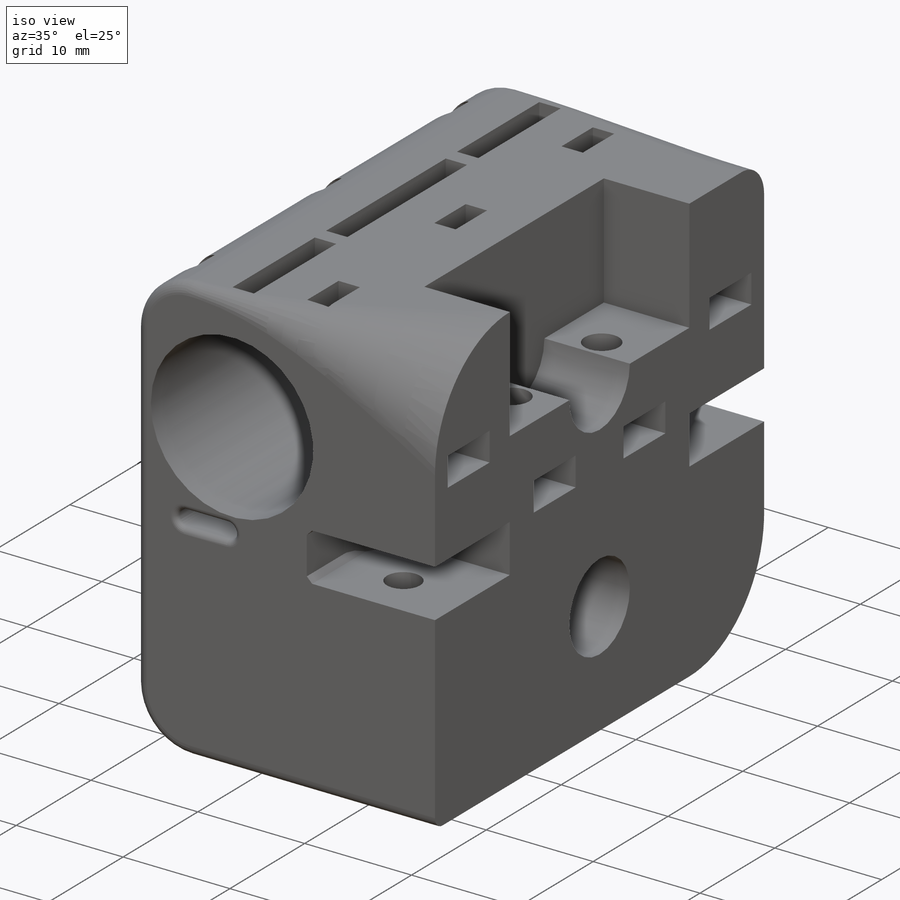
[diagram: iso view]
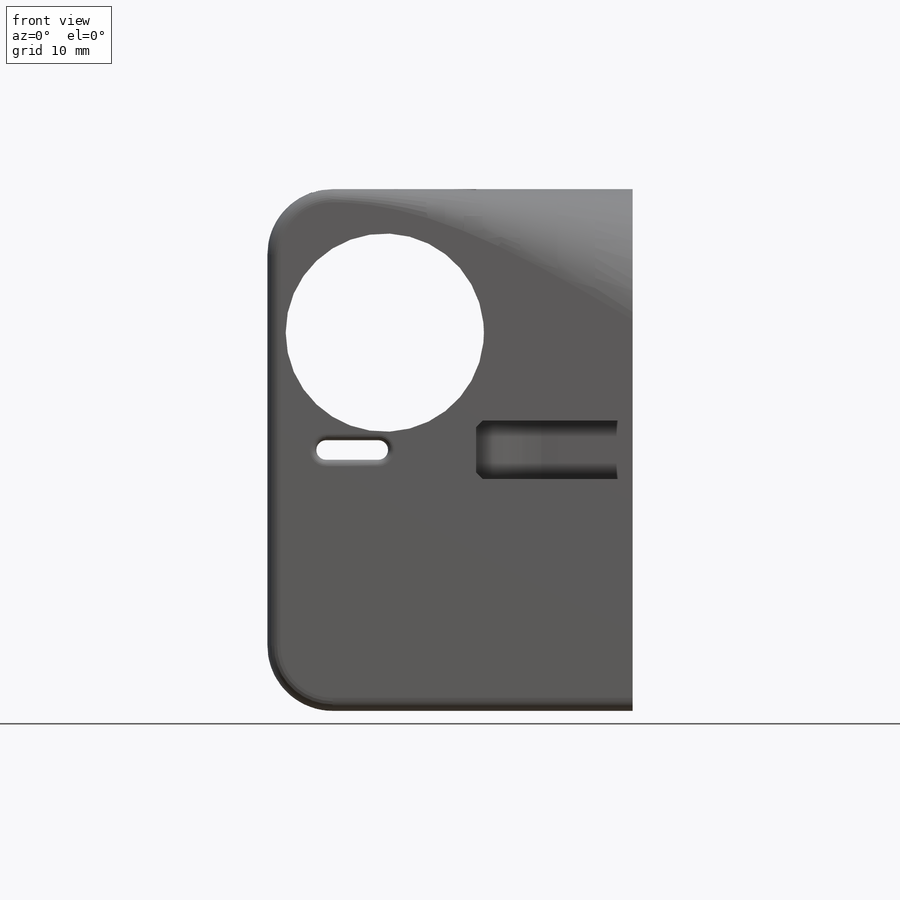
[diagram: front view]
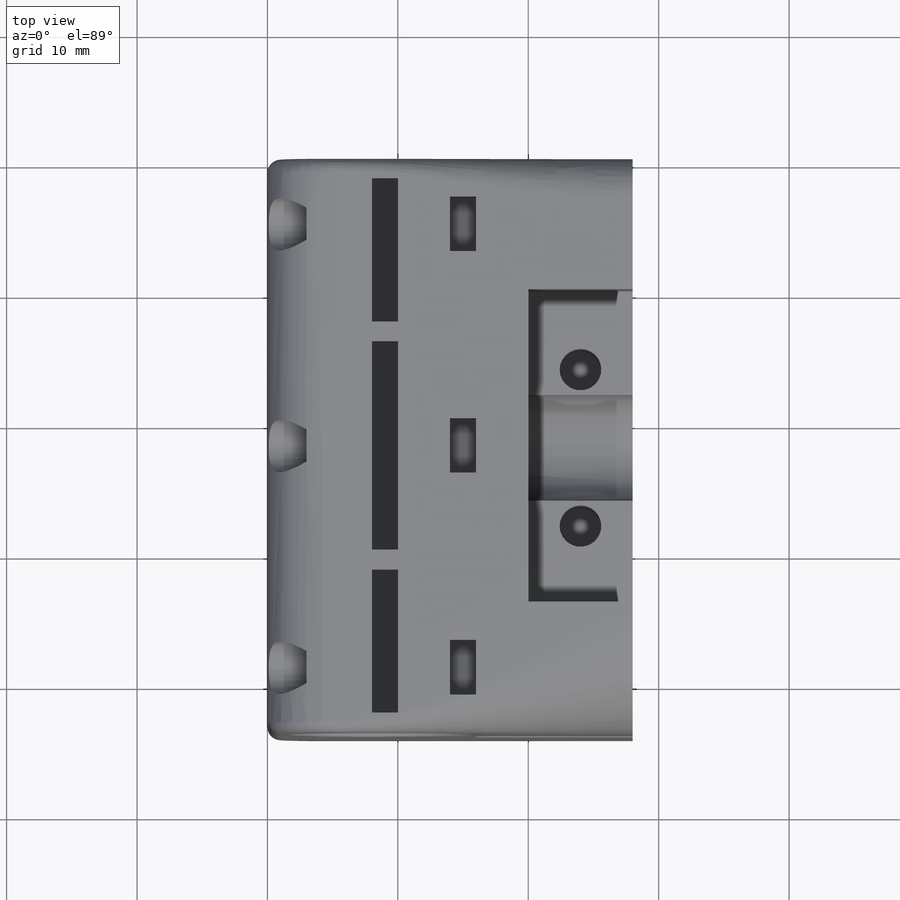
[diagram: top view]
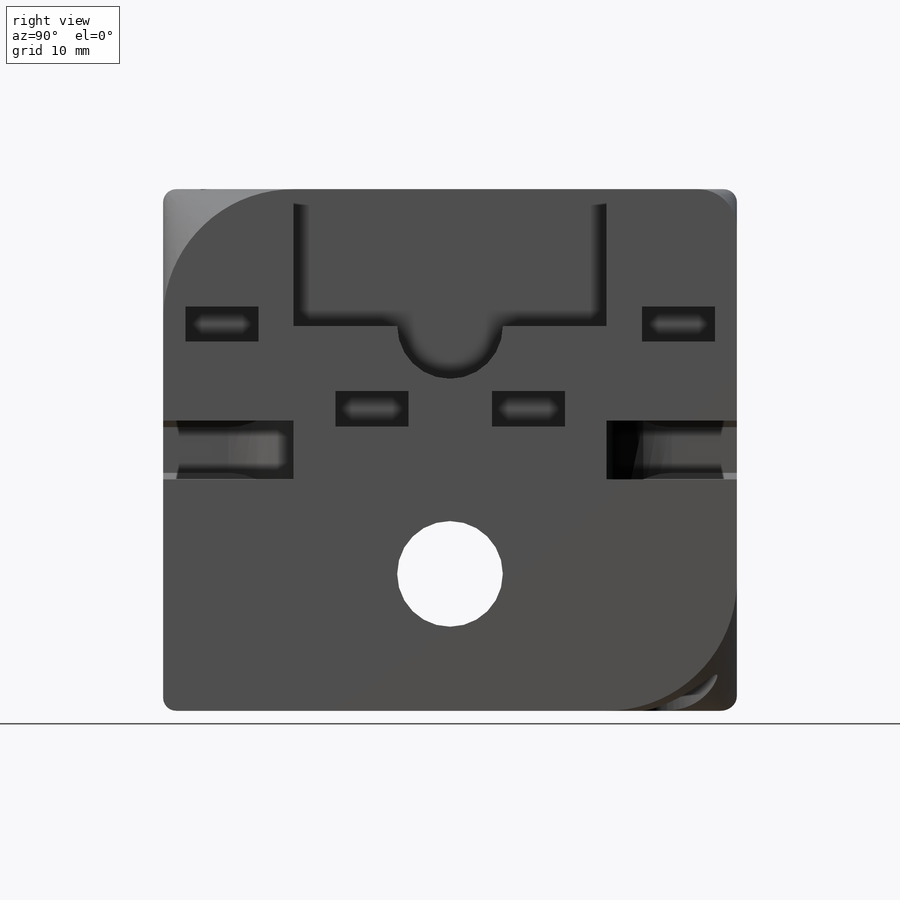
[diagram: right view]
SOLIDWORKS PART (.sldprt)
format: sldprt  version: not decoded by parser v0  size: 1,939,968 bytes
history: native  units: mm
features: sketch x29, cut_extrude x20, extrude x9, fillet x8, chamfer x4, material x1 (+11 scaffold rows collapsed)
feature tree (82):
  scaffold x11  (default folders/planes/origin — collapsed)
  material  "Material <not specified>"
  sketch  "Sketch1"  dims[c1.D1=15.2mm c1.D2=15.1mm c1.D4=5.0mm c1.D7=3.2mm c1.D9=3.2mm c2.D2=9.0mm c2.D3=11.0mm c2.D5=28.0mm c2.D6=40.0mm c2.D8=4.0mm c2.D9=4.0mm c2.D10=4.0mm c3.D9=13.0mm c3.D11=4.0mm c3.D12=13.0mm c3.D13=4.0mm c3.D7=10.5mm c3.D8=10.5mm c4.D9=8.0mm c4.D10=8.0mm]
  extrude  "Boss-Extrude1"  Depth=44mm
  sketch  "Sketch2"  dims[c1.D1=8.1mm c1.D2=8.2mm c1.D3=19.0mm c1.D4=10.5mm c2.D3=10.5mm c2.D5=22.0mm]
  cut_extrude  "Cut-Extrude1"  Depth=11mm
  sketch  "Sketch4"  dims[c1.D1=~13.22826mm c1.D2=~13.22826mm c1.D3=8.1mm c2.D1=10.5mm c2.D2=16.7985mm c3.D2=90.0deg c4.D2=22.0mm c4.D1=19.0mm c4.D3=10.5mm c5.D1=19.0mm]
  cut_extrude  "Cut-Extrude2"  [1 undecoded]
  sketch  "Sketch36"  dims[D1=24.0mm D2=10.0mm]
  extrude  "Boss-Extrude14"  [1 undecoded]
  sketch  "Sketch6"  dims[D1=15.0mm D2=4.5mm D3=5.0mm D4=5.0mm]
  extrude  "Boss-Extrude2"  Depth=10mm
  sketch  "Sketch8"  dims[D1=3.2mm D2=5.5mm D3=5.5mm]
  cut_extrude  "Cut-Extrude4"  [1 undecoded]
  sketch  "Sketch7"  dims[c1.D1=3.0mm c1.D2=~54.662123mm c2.D2=90.0deg c3.D2=11.0mm c3.D1=1.5mm c4.D2=4.0mm c4.D3=10.0mm]
  cut_extrude  "Cut-Extrude5"  [1 undecoded]
  sketch  "Sketch9"  dims[D1=3.2mm D2=12.0mm D3=16.0mm D4=4.0mm]
  cut_extrude  "Cut-Extrude6"  Depth=10mm
  sketch  "Sketch10"  dims[c1.D1=3.2mm c1.D3=3.2mm c1.D2=4.0mm c2.D3=16.0mm c2.D4=12.0mm]
  cut_extrude  "Cut-Extrude7"  Depth=9mm
  sketch  "Sketch11"  dims[D1=5.0mm D2=4.5mm D3=5.0mm]
  extrude  "Boss-Extrude3"  Depth=10mm
  sketch  "Sketch12"  dims[D1=3.2mm D2=5.5mm D3=5.5mm]
  cut_extrude  "Cut-Extrude8"  [1 undecoded]
  sketch  "Sketch14"  dims[c1.D1=5.6mm c1.D2=13.2mm c1.D3=11.2mm c1.D4=2.7mm c1.D5=5.0mm c2.D3=12.0mm c2.D6=5.0mm c2.D7=5.0mm c2.D8=2.0mm c2.D9=2.0mm]
  cut_extrude  "Cut-Extrude9"  Depth=8mm
  sketch  "Sketch15"  dims[c1.D1=5.6mm c1.D2=13.2mm c1.D3=11.2mm c1.D4=5.0mm c1.D5=2.7mm c2.D3=12.0mm]
  cut_extrude  "Cut-Extrude10"  Depth=8mm
  chamfer  "Chamfer1"  Distance=2mm Angle=45deg
  chamfer  "Chamfer2"  Distance=2mm Angle=45deg
  chamfer  "Chamfer3"  Distance=2mm Angle=45deg
  fillet  "Fillet1"  Radius=4mm
  sketch  "Sketch18"  dims[c1.D1=2.2mm c1.D2=2.2mm c1.D4=2.2mm c1.D3=5.0mm c2.D4=5.0mm c2.D5=2.0mm c2.D6=17.0mm c2.D7=7.5mm]
  cut_extrude  "Cut-Extrude11"  Depth=18mm
  fillet  "Fillet5"  Radius=1mm
  sketch  "Sketch20"  dims[D1=4.0mm]
  cut_extrude  "Cut-Extrude12"  Depth=3mm
  sketch  "Sketch22"  dims[c1.D1=4.2mm c1.D2=2.9mm c1.D3=2.9mm c1.D4=11.0mm c1.D5=2.0mm c1.D6=4.2mm c1.D7=12.8mm c1.D8=2.0mm c2.D2=2.9mm c2.D3=2.9mm]
  cut_extrude  "Cut-Extrude13"  Depth=5mm
  sketch  "Sketch23"  dims[c1.D1=2.0mm c1.D2=8.0mm c1.D3=1.5mm c1.D4=1.5mm c1.D5=1.5mm c1.D6=1.5mm c1.D7=11.0mm c1.D8=11.0mm c2.D3=1.5mm c2.D4=1.5mm]
  cut_extrude  "Cut-Extrude14"  Depth=5mm
  sketch  "Sketch24"
  extrude  "Boss-Extrude5"  Depth=0.2mm
  sketch  "Sketch25"
  extrude  "Boss-Extrude6"  Depth=0.2mm
  sketch  "Sketch29"  dims[c1.D3=3.2mm c1.D5=3.1mm c1.D1=2.5mm c1.D2=4.5mm c2.D3=6.1mm c2.D4=6.1mm c2.D1=35.0mm]
  cut_extrude  "Cut-Extrude16"  Depth=3mm
  sketch  "Sketch31"  dims[c1.D1=10.0mm c1.D2=7.25mm c1.D3=4.5mm c2.D2=7.25mm]
  cut_extrude  "Cut-Extrude17"  Depth=12mm
  chamfer  "Chamfer4"  Distance=0.5mm Angle=45deg
  fillet  "Fillet8"  Radius=5mm
  sketch  "Sketch39"  dims[D1=24.0mm D2=10.0mm]
  extrude  "Boss-Extrude15"  [1 undecoded]
  sketch  "Sketch32"  dims[D1=5.6mm]
  cut_extrude  "Cut-Extrude18"  Depth=5mm
  sketch  "Sketch34"  dims[D1=1.5mm D2=4.0mm D3=2.25mm D4=4.5mm]
  cut_extrude  "Cut-Extrude19"  [1 undecoded]
  sketch  "Sketch38"  dims[D1=9.0mm D2=1.7mm D3=1.7mm D4=5.6mm D5=2.7mm D6=3.1mm]
  cut_extrude  "Cut-Extrude21"  Depth=9.1mm
  fillet  "Fillet9"  Radius=10mm
  fillet  "Fillet10"  Radius=1mm
  fillet  "Fillet11"  Radius=0.5mm
  sketch  "Sketch40"  dims[D3=10.0mm D1=5.0mm D2=5.0mm]
  cut_extrude  "Cut-Extrude22"  [1 undecoded]
  fillet  "Fillet12"  Radius=1mm
  fillet  "Fillet13"  Radius=1mm
  sketch  "Sketch41"
  extrude  "Boss-Extrude16"  Depth=0.2mm
  sketch  "Sketch42"
  extrude  "Boss-Extrude17"  Depth=0.2mm
  sketch  "Sketch5"  dims[D5=3.0mm D1=20.0mm D2=20.0mm D3=8.0mm D4=8.0mm]
  cut_extrude  "Cut-Extrude3"  Depth=12mm
decode coverage: 58 of 70 modeling features carry decoded parameters
note: ~ marks probable driven/reference dimensions
note: 8 parameter values undecoded
summary: no parameter record found for 8 features
note: suppression state not decoded; provenance and decode notes live in map.json
